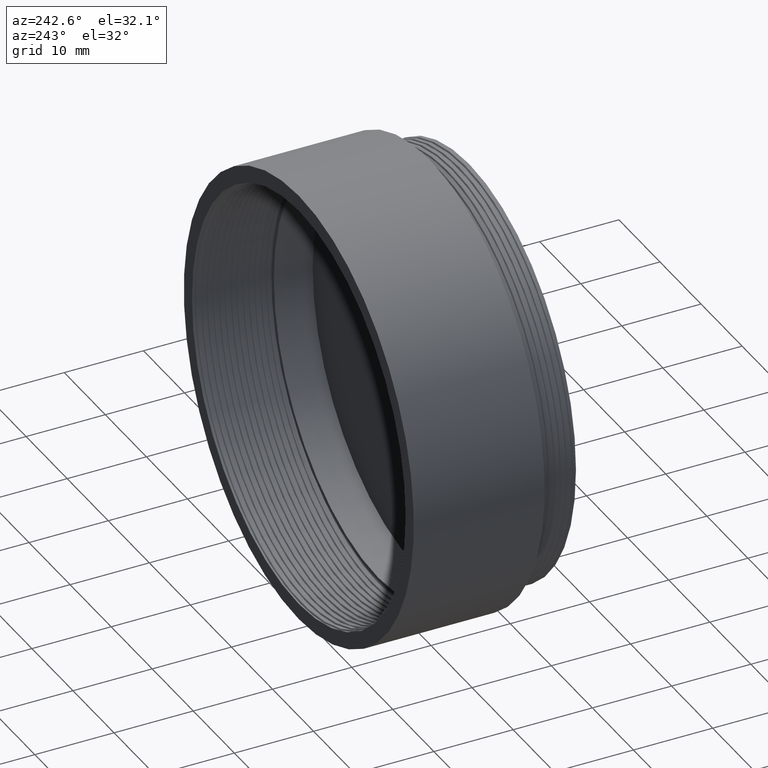
[diagram: clean part render]
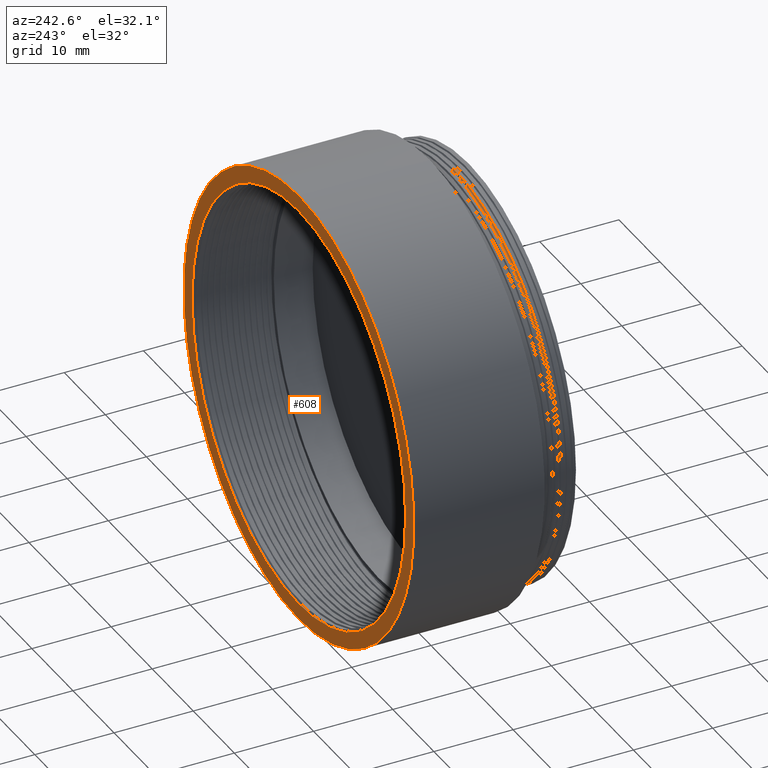
[diagram: same view with one face highlighted and labeled with its STEP entity id]
A machine part, auxiliary view. The second image highlights one B-rep face of the part: STEP entity #608.
In plain terms, the highlighted planar face has unit normal (0, 1, 0).
Its self-contained STEP definition (entity closure, byte-faithful):
#18 = CARTESIAN_POINT ( 'NONE',  ( 0.000000000000000000, 21.49999999999999289, 0.000000000000000000 ) ) ;
#347 = DIRECTION ( 'NONE',  ( 0.000000000000000000, 1.000000000000000000, 0.000000000000000000 ) ) ;
#568 = VERTEX_POINT ( 'NONE', #4190 ) ;
#608 = ADVANCED_FACE ( 'NONE', ( #2067, #5478 ), #3387, .T. ) ;
#772 = CIRCLE ( 'NONE', #4590, 28.00000000000000000 ) ;
#827 = CIRCLE ( 'NONE', #2786, 28.00000000000000000 ) ;
#926 = CARTESIAN_POINT ( 'NONE',  ( 0.000000000000000000, 21.50000000000000000, 0.000000000000000000 ) ) ;
#1039 = ORIENTED_EDGE ( 'NONE', *, *, #3157, .F. ) ;
#1349 = DIRECTION ( 'NONE',  ( 0.000000000000000000, 0.000000000000000000, -1.000000000000000000 ) ) ;
#1384 = AXIS2_PLACEMENT_3D ( 'NONE', #3414, #4197, #1703 ) ;
#1426 = ORIENTED_EDGE ( 'NONE', *, *, #4478, .T. ) ;
#1433 = EDGE_CURVE ( 'NONE', #2775, #2863, #827, .T. ) ;
#1482 = CIRCLE ( 'NONE', #1384, 26.00000000000000000 ) ;
#1703 = DIRECTION ( 'NONE',  ( 0.000000000000000000, 0.000000000000000000, -1.000000000000000000 ) ) ;
#1739 = DIRECTION ( 'NONE',  ( 0.000000000000000000, 0.000000000000000000, -1.000000000000000000 ) ) ;
#1879 = ORIENTED_EDGE ( 'NONE', *, *, #5305, .T. ) ;
#2067 = FACE_BOUND ( 'NONE', #3113, .T. ) ;
#2156 = DIRECTION ( 'NONE',  ( -0.000000000000000000, -1.000000000000000000, -0.000000000000000000 ) ) ;
#2347 = CARTESIAN_POINT ( 'NONE',  ( 0.000000000000000000, 21.49999999999999289, 0.000000000000000000 ) ) ;
#2365 = VERTEX_POINT ( 'NONE', #3788 ) ;
#2492 = CARTESIAN_POINT ( 'NONE',  ( 3.429011037612589276E-15, 21.49999999999999289, 28.00000000000000000 ) ) ;
#2518 = AXIS2_PLACEMENT_3D ( 'NONE', #2942, #347, #4643 ) ;
#2755 = ORIENTED_EDGE ( 'NONE', *, *, #3017, .T. ) ;
#2775 = VERTEX_POINT ( 'NONE', #2492 ) ;
#2786 = AXIS2_PLACEMENT_3D ( 'NONE', #2347, #5256, #3262 ) ;
#2863 = VERTEX_POINT ( 'NONE', #4202 ) ;
#2942 = CARTESIAN_POINT ( 'NONE',  ( 28.00000000000000000, 21.49999999999999645, 0.000000000000000000 ) ) ;
#2983 = DIRECTION ( 'NONE',  ( -0.000000000000000000, -1.000000000000000000, -0.000000000000000000 ) ) ;
#3017 = EDGE_CURVE ( 'NONE', #568, #3929, #4060, .T. ) ;
#3113 = EDGE_LOOP ( 'NONE', ( #2755, #1879, #1426 ) ) ;
#3136 = EDGE_LOOP ( 'NONE', ( #1039, #5309 ) ) ;
#3157 = EDGE_CURVE ( 'NONE', #2863, #2775, #772, .T. ) ;
#3262 = DIRECTION ( 'NONE',  ( 0.000000000000000000, 0.000000000000000000, -1.000000000000000000 ) ) ;
#3387 = PLANE ( 'NONE',  #2518 ) ;
#3414 = CARTESIAN_POINT ( 'NONE',  ( 0.000000000000000000, 21.50000000000000000, 0.000000000000000000 ) ) ;
#3688 = DIRECTION ( 'NONE',  ( -0.000000000000000000, -1.000000000000000000, -0.000000000000000000 ) ) ;
#3712 = CARTESIAN_POINT ( 'NONE',  ( 0.000000000000000000, 21.50000000000000000, 0.000000000000000000 ) ) ;
#3788 = CARTESIAN_POINT ( 'NONE',  ( 3.184081677783118191E-15, 21.50000000000000000, 26.00000000000000000 ) ) ;
#3929 = VERTEX_POINT ( 'NONE', #4678 ) ;
#4060 = CIRCLE ( 'NONE', #5477, 26.00000000000000000 ) ;
#4190 = CARTESIAN_POINT ( 'NONE',  ( -26.00000000000000000, 21.50000000000000000, 0.000000000000000000 ) ) ;
#4197 = DIRECTION ( 'NONE',  ( -0.000000000000000000, -1.000000000000000000, -0.000000000000000000 ) ) ;
#4202 = CARTESIAN_POINT ( 'NONE',  ( 0.000000000000000000, 21.49999999999999289, -28.00000000000000000 ) ) ;
#4478 = EDGE_CURVE ( 'NONE', #2365, #568, #1482, .T. ) ;
#4590 = AXIS2_PLACEMENT_3D ( 'NONE', #18, #2983, #1349 ) ;
#4643 = DIRECTION ( 'NONE',  ( 0.000000000000000000, -0.000000000000000000, 1.000000000000000000 ) ) ;
#4678 = CARTESIAN_POINT ( 'NONE',  ( 0.000000000000000000, 21.50000000000000000, -26.00000000000000000 ) ) ;
#4852 = AXIS2_PLACEMENT_3D ( 'NONE', #3712, #3688, #4883 ) ;
#4883 = DIRECTION ( 'NONE',  ( 0.000000000000000000, 0.000000000000000000, -1.000000000000000000 ) ) ;
#5256 = DIRECTION ( 'NONE',  ( -0.000000000000000000, -1.000000000000000000, -0.000000000000000000 ) ) ;
#5305 = EDGE_CURVE ( 'NONE', #3929, #2365, #5385, .T. ) ;
#5309 = ORIENTED_EDGE ( 'NONE', *, *, #1433, .F. ) ;
#5385 = CIRCLE ( 'NONE', #4852, 26.00000000000000000 ) ;
#5477 = AXIS2_PLACEMENT_3D ( 'NONE', #926, #2156, #1739 ) ;
#5478 = FACE_OUTER_BOUND ( 'NONE', #3136, .T. ) ;